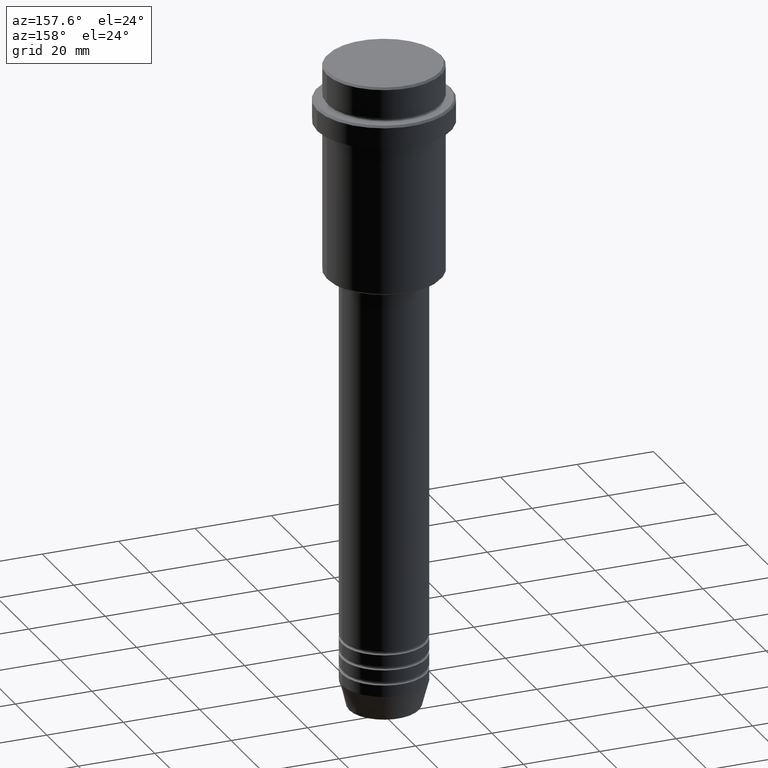
[diagram: clean part render]
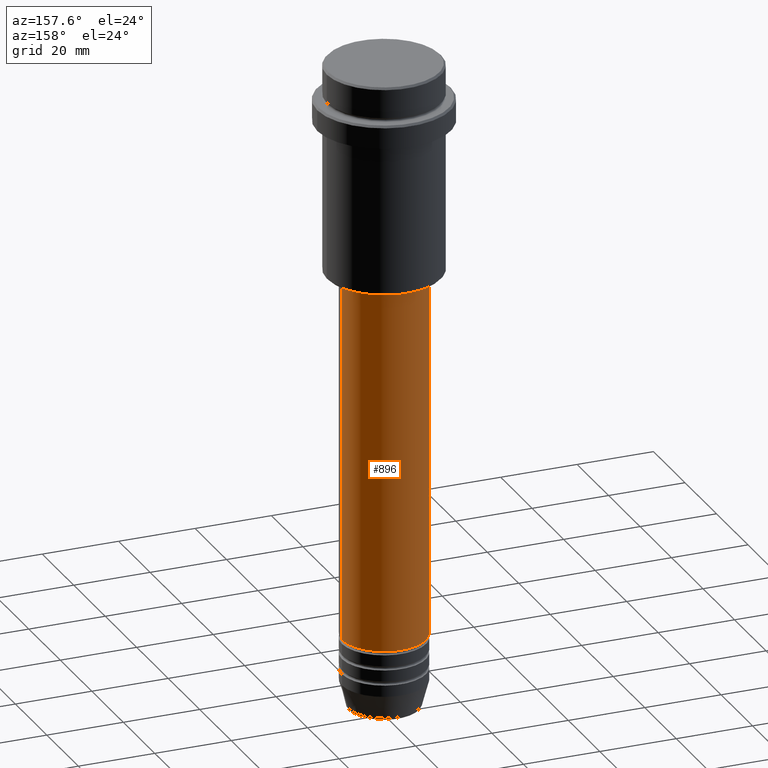
[diagram: same view with one face highlighted and labeled with its STEP entity id]
A machine part, auxiliary view. The second image highlights one B-rep face of the part: STEP entity #896.
In plain terms, the highlighted cylindrical surface (partial cylindrical patch) has radius 11 mm, axis along (-0, -0, 1).
Its self-contained STEP definition (entity closure, byte-faithful):
#55 = ORIENTED_EDGE ( 'NONE', *, *, #1059, .T. ) ;
#75 = CARTESIAN_POINT ( 'NONE',  ( 0.000000000000000000, 0.000000000000000000, -55.99999999999998579 ) ) ;
#82 = CYLINDRICAL_SURFACE ( 'NONE', #683, 11.00000000000000000 ) ;
#96 = CARTESIAN_POINT ( 'NONE',  ( -10.99999999999999822, 1.347111479062088207E-15, -55.99999999999998579 ) ) ;
#137 = CARTESIAN_POINT ( 'NONE',  ( -11.00000000000000000, 1.347111479062088405E-15, 0.000000000000000000 ) ) ;
#142 = LINE ( 'NONE', #137, #1134 ) ;
#143 = CARTESIAN_POINT ( 'NONE',  ( 10.99999999999999822, 0.000000000000000000, -55.99999999999998579 ) ) ;
#158 = EDGE_CURVE ( 'NONE', #311, #1334, #355, .T. ) ;
#199 = DIRECTION ( 'NONE',  ( 1.000000000000000000, 0.000000000000000000, 0.000000000000000000 ) ) ;
#249 = CIRCLE ( 'NONE', #547, 11.00000000000000000 ) ;
#303 = DIRECTION ( 'NONE',  ( -0.000000000000000000, -0.000000000000000000, 1.000000000000000000 ) ) ;
#311 = VERTEX_POINT ( 'NONE', #1114 ) ;
#355 = LINE ( 'NONE', #1100, #883 ) ;
#383 = DIRECTION ( 'NONE',  ( 1.000000000000000000, 0.000000000000000000, 0.000000000000000000 ) ) ;
#477 = DIRECTION ( 'NONE',  ( -0.000000000000000000, -0.000000000000000000, 1.000000000000000000 ) ) ;
#490 = ORIENTED_EDGE ( 'NONE', *, *, #694, .T. ) ;
#526 = CIRCLE ( 'NONE', #569, 10.99999999999999822 ) ;
#547 = AXIS2_PLACEMENT_3D ( 'NONE', #1010, #477, #1348 ) ;
#554 = FACE_OUTER_BOUND ( 'NONE', #951, .T. ) ;
#569 = AXIS2_PLACEMENT_3D ( 'NONE', #75, #303, #383 ) ;
#626 = VERTEX_POINT ( 'NONE', #1410 ) ;
#683 = AXIS2_PLACEMENT_3D ( 'NONE', #875, #1196, #199 ) ;
#694 = EDGE_CURVE ( 'NONE', #311, #626, #249, .T. ) ;
#737 = EDGE_CURVE ( 'NONE', #1334, #1007, #526, .T. ) ;
#830 = ORIENTED_EDGE ( 'NONE', *, *, #158, .F. ) ;
#875 = CARTESIAN_POINT ( 'NONE',  ( 0.000000000000000000, 0.000000000000000000, 0.000000000000000000 ) ) ;
#883 = VECTOR ( 'NONE', #1087, 1000.000000000000000 ) ;
#896 = ADVANCED_FACE ( 'NONE', ( #554 ), #82, .T. ) ;
#951 = EDGE_LOOP ( 'NONE', ( #490, #55, #1154, #830 ) ) ;
#1007 = VERTEX_POINT ( 'NONE', #96 ) ;
#1010 = CARTESIAN_POINT ( 'NONE',  ( 0.000000000000000000, 0.000000000000000000, -150.9999999999998579 ) ) ;
#1059 = EDGE_CURVE ( 'NONE', #626, #1007, #142, .T. ) ;
#1087 = DIRECTION ( 'NONE',  ( -0.000000000000000000, -0.000000000000000000, 1.000000000000000000 ) ) ;
#1100 = CARTESIAN_POINT ( 'NONE',  ( 11.00000000000000000, 0.000000000000000000, 0.000000000000000000 ) ) ;
#1114 = CARTESIAN_POINT ( 'NONE',  ( 11.00000000000000000, 0.000000000000000000, -150.9999999999998579 ) ) ;
#1134 = VECTOR ( 'NONE', #1228, 1000.000000000000000 ) ;
#1154 = ORIENTED_EDGE ( 'NONE', *, *, #737, .F. ) ;
#1196 = DIRECTION ( 'NONE',  ( -0.000000000000000000, -0.000000000000000000, 1.000000000000000000 ) ) ;
#1228 = DIRECTION ( 'NONE',  ( -0.000000000000000000, -0.000000000000000000, 1.000000000000000000 ) ) ;
#1334 = VERTEX_POINT ( 'NONE', #143 ) ;
#1348 = DIRECTION ( 'NONE',  ( 1.000000000000000000, 0.000000000000000000, 0.000000000000000000 ) ) ;
#1410 = CARTESIAN_POINT ( 'NONE',  ( -11.00000000000000000, 1.347111479062088405E-15, -150.9999999999998579 ) ) ;